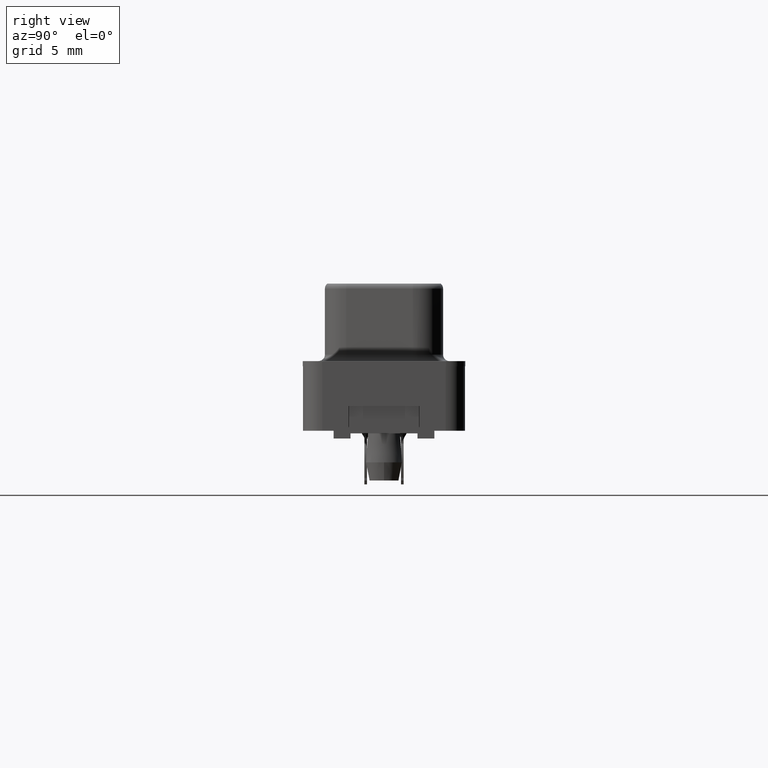
[diagram: clean part render]
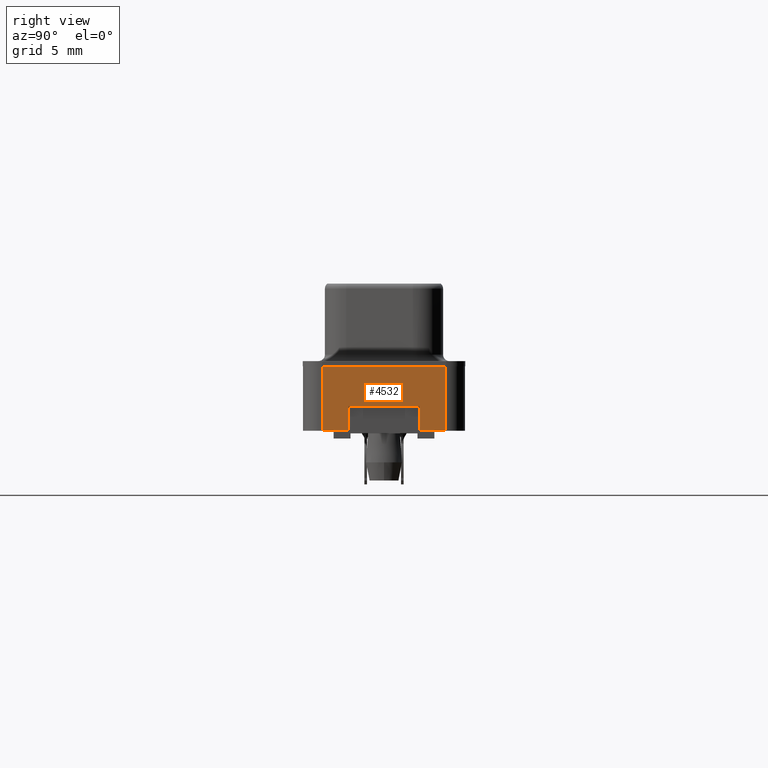
[diagram: same view with one face highlighted and labeled with its STEP entity id]
A machine part, right view. The second image highlights one B-rep face of the part: STEP entity #4532.
In plain terms, the highlighted planar face has unit normal (1, 0, 0).
Its self-contained STEP definition (entity closure, byte-faithful):
#27 = ORIENTED_EDGE ( 'NONE', *, *, #19590, .F. ) ;
#694 = FACE_OUTER_BOUND ( 'NONE', #11658, .T. ) ;
#799 = VECTOR ( 'NONE', #2694, 1000.000000000000000 ) ;
#1613 = CARTESIAN_POINT ( 'NONE',  ( 50.03999999999999915, 2.750000000000007105, -3.100000000000000533 ) ) ;
#2036 = CARTESIAN_POINT ( 'NONE',  ( 50.03999999999999915, -2.749999999999990674, -3.100000000000000533 ) ) ;
#2468 = VERTEX_POINT ( 'NONE', #6324 ) ;
#2694 = DIRECTION ( 'NONE',  ( -0.0000000000000000000, -0.0000000000000000000, -1.000000000000000000 ) ) ;
#2969 = VERTEX_POINT ( 'NONE', #9032 ) ;
#3060 = CARTESIAN_POINT ( 'NONE',  ( 50.03999999999999915, -2.749999999999990674, -3.100000000000000533 ) ) ;
#3990 = DIRECTION ( 'NONE',  ( -0.0000000000000000000, -0.0000000000000000000, -1.000000000000000000 ) ) ;
#4110 = LINE ( 'NONE', #24908, #19234 ) ;
#4532 = ADVANCED_FACE ( 'NONE', ( #694 ), #21855, .T. ) ;
#4707 = LINE ( 'NONE', #3060, #799 ) ;
#4787 = CARTESIAN_POINT ( 'NONE',  ( 50.03999999999999915, 4.775000000000003020, -5.000000000000000000 ) ) ;
#4855 = DIRECTION ( 'NONE',  ( 0.0000000000000000000, 0.0000000000000000000, -1.000000000000000000 ) ) ;
#5383 = CARTESIAN_POINT ( 'NONE',  ( 50.03999999999999915, -4.774999999999995914, -5.000000000000000000 ) ) ;
#5647 = DIRECTION ( 'NONE',  ( 0.0000000000000000000, 0.0000000000000000000, 1.000000000000000000 ) ) ;
#6324 = CARTESIAN_POINT ( 'NONE',  ( 50.03999999999999915, 2.750000000000007550, -3.100000000000000533 ) ) ;
#6763 = AXIS2_PLACEMENT_3D ( 'NONE', #21978, #17921, #4855 ) ;
#6800 = ORIENTED_EDGE ( 'NONE', *, *, #24309, .F. ) ;
#6997 = EDGE_CURVE ( 'NONE', #2468, #22047, #18839, .T. ) ;
#7201 = EDGE_CURVE ( 'NONE', #12118, #12046, #16645, .T. ) ;
#7203 = DIRECTION ( 'NONE',  ( 0.0000000000000000000, 1.000000000000000000, 0.0000000000000000000 ) ) ;
#7266 = CARTESIAN_POINT ( 'NONE',  ( 50.03999999999999915, -4.774999999999995914, -5.000000000000000000 ) ) ;
#7523 = LINE ( 'NONE', #22892, #24541 ) ;
#8514 = EDGE_CURVE ( 'NONE', #22047, #2969, #4707, .T. ) ;
#8554 = ORIENTED_EDGE ( 'NONE', *, *, #11664, .T. ) ;
#9032 = CARTESIAN_POINT ( 'NONE',  ( 50.03999999999999915, -2.749999999999990674, -5.000000000000000000 ) ) ;
#9093 = CARTESIAN_POINT ( 'NONE',  ( 50.03999999999999915, -4.774999999999995914, -5.000000000000000000 ) ) ;
#9208 = VECTOR ( 'NONE', #19951, 1000.000000000000000 ) ;
#9296 = DIRECTION ( 'NONE',  ( 0.0000000000000000000, -1.000000000000000000, 0.0000000000000000000 ) ) ;
#10444 = ORIENTED_EDGE ( 'NONE', *, *, #8514, .F. ) ;
#10822 = VECTOR ( 'NONE', #9296, 1000.000000000000000 ) ;
#11167 = CARTESIAN_POINT ( 'NONE',  ( 50.03999999999999915, -4.774999999999995914, 0.0000000000000000000 ) ) ;
#11313 = LINE ( 'NONE', #5383, #15587 ) ;
#11658 = EDGE_LOOP ( 'NONE', ( #23123, #23919, #18956, #27, #6800, #8554, #10444, #20111 ) ) ;
#11664 = EDGE_CURVE ( 'NONE', #12720, #2969, #20787, .T. ) ;
#11775 = DIRECTION ( 'NONE',  ( 0.0000000000000000000, 1.000000000000000000, 0.0000000000000000000 ) ) ;
#11965 = CARTESIAN_POINT ( 'NONE',  ( 50.03999999999999915, 2.750000000000007105, -5.000000000000000000 ) ) ;
#12046 = VERTEX_POINT ( 'NONE', #4787 ) ;
#12118 = VERTEX_POINT ( 'NONE', #11965 ) ;
#12333 = CARTESIAN_POINT ( 'NONE',  ( 50.03999999999999915, -4.774999999999995914, 0.0000000000000000000 ) ) ;
#12720 = VERTEX_POINT ( 'NONE', #7266 ) ;
#12724 = VERTEX_POINT ( 'NONE', #18468 ) ;
#14226 = EDGE_CURVE ( 'NONE', #2468, #12118, #4110, .T. ) ;
#14748 = CARTESIAN_POINT ( 'NONE',  ( 50.03999999999999915, -4.774999999999995914, -5.000000000000000000 ) ) ;
#15584 = EDGE_CURVE ( 'NONE', #12046, #12724, #7523, .T. ) ;
#15587 = VECTOR ( 'NONE', #18960, 1000.000000000000000 ) ;
#16645 = LINE ( 'NONE', #14748, #9208 ) ;
#17921 = DIRECTION ( 'NONE',  ( 1.000000000000000000, 0.0000000000000000000, 0.0000000000000000000 ) ) ;
#18468 = CARTESIAN_POINT ( 'NONE',  ( 50.03999999999999915, 4.775000000000003020, 0.0000000000000000000 ) ) ;
#18839 = LINE ( 'NONE', #1613, #10822 ) ;
#18956 = ORIENTED_EDGE ( 'NONE', *, *, #15584, .T. ) ;
#18960 = DIRECTION ( 'NONE',  ( 0.0000000000000000000, 0.0000000000000000000, 1.000000000000000000 ) ) ;
#19234 = VECTOR ( 'NONE', #3990, 1000.000000000000000 ) ;
#19590 = EDGE_CURVE ( 'NONE', #21583, #12724, #20717, .T. ) ;
#19951 = DIRECTION ( 'NONE',  ( 0.0000000000000000000, 1.000000000000000000, 0.0000000000000000000 ) ) ;
#20111 = ORIENTED_EDGE ( 'NONE', *, *, #6997, .F. ) ;
#20717 = LINE ( 'NONE', #11167, #23047 ) ;
#20787 = LINE ( 'NONE', #9093, #21213 ) ;
#21213 = VECTOR ( 'NONE', #7203, 1000.000000000000000 ) ;
#21583 = VERTEX_POINT ( 'NONE', #12333 ) ;
#21855 = PLANE ( 'NONE',  #6763 ) ;
#21978 = CARTESIAN_POINT ( 'NONE',  ( 50.03999999999999915, -4.774999999999995914, -5.000000000000000000 ) ) ;
#22047 = VERTEX_POINT ( 'NONE', #2036 ) ;
#22892 = CARTESIAN_POINT ( 'NONE',  ( 50.03999999999999915, 4.775000000000003020, -5.000000000000000000 ) ) ;
#23047 = VECTOR ( 'NONE', #11775, 1000.000000000000000 ) ;
#23123 = ORIENTED_EDGE ( 'NONE', *, *, #14226, .T. ) ;
#23919 = ORIENTED_EDGE ( 'NONE', *, *, #7201, .T. ) ;
#24309 = EDGE_CURVE ( 'NONE', #12720, #21583, #11313, .T. ) ;
#24541 = VECTOR ( 'NONE', #5647, 1000.000000000000000 ) ;
#24908 = CARTESIAN_POINT ( 'NONE',  ( 50.03999999999999915, 2.750000000000007105, -3.100000000000000533 ) ) ;